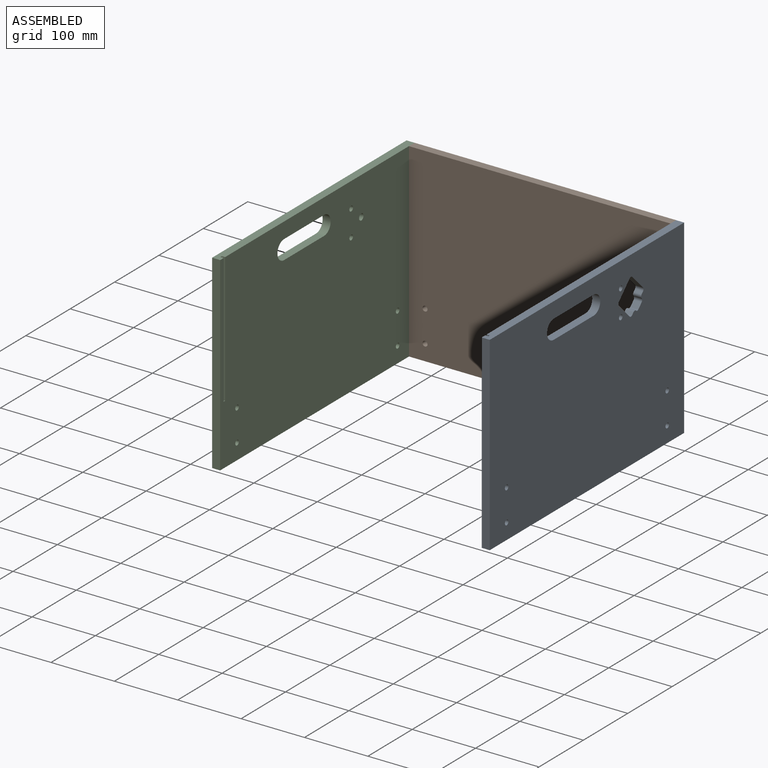
[diagram: assembled view]
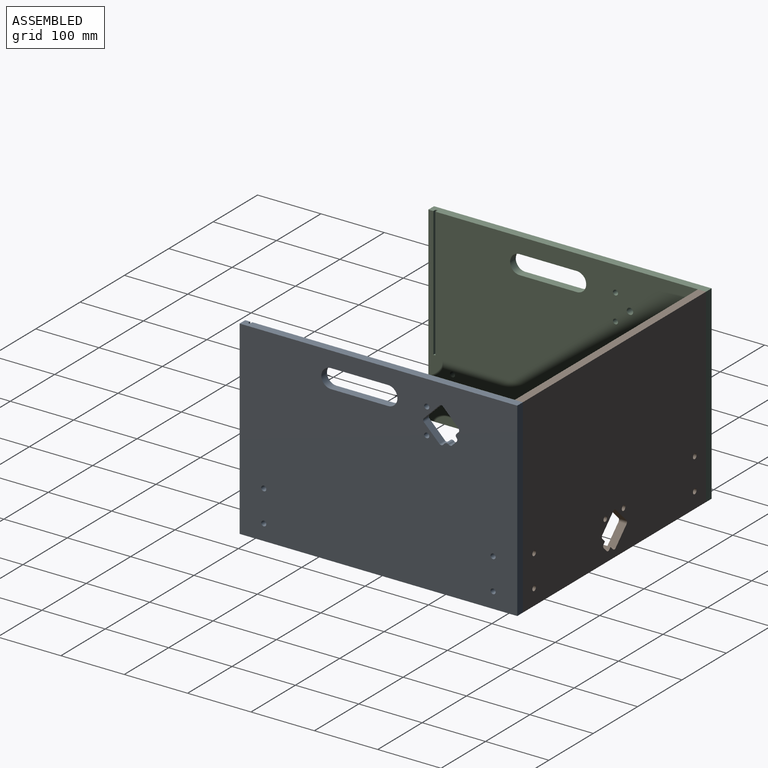
[diagram: assembled view, second angle]
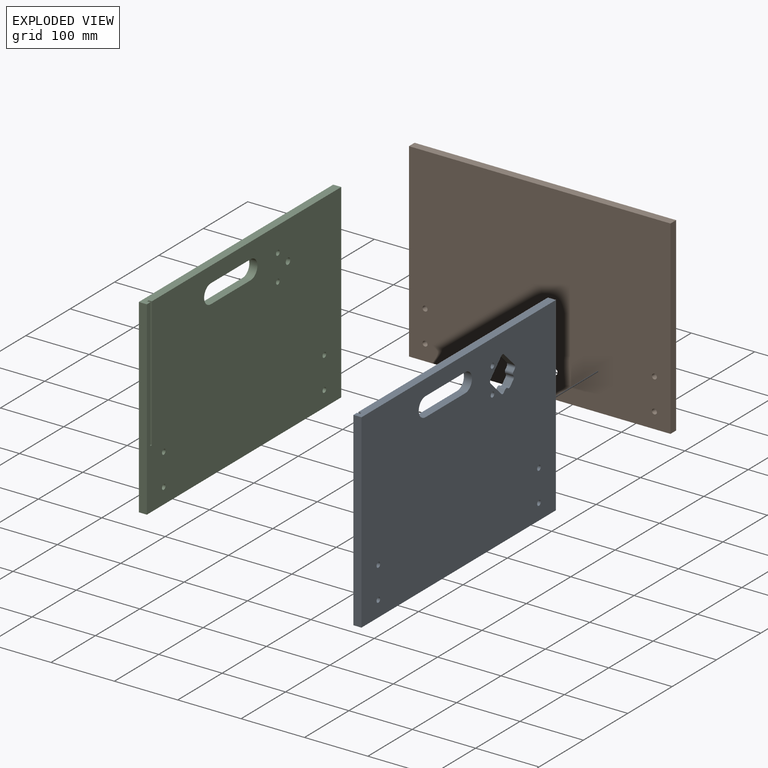
[diagram: exploded view]
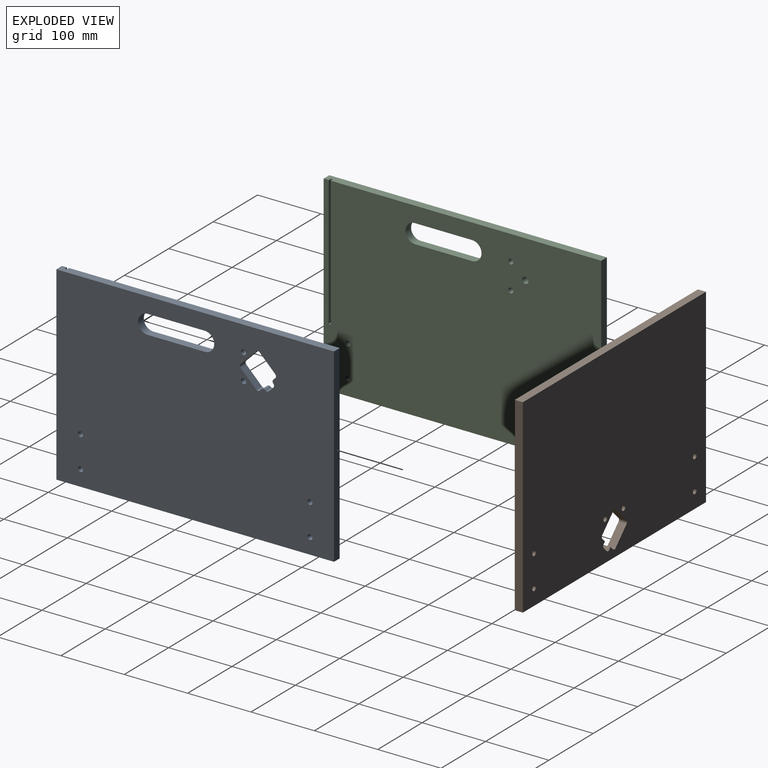
[diagram: exploded view, second angle]
ASSEMBLY  parts=3 mates=4
PART A: 34 faces, bbox 454.1x28.7x316 mm
  f0: plane 205x3.18mm, normal (0,1,0), area 650.9mm2, adj f1,f2,f3,f5
  f1: plane 205x5mm, normal (1,0,0), area 1025mm2, adj f0,f3,f5,f30
  f2: plane 205x5mm, normal (-1,0,0), area 1025mm2, adj f0,f3,f5,f30
  f3: plane 5x3.18mm, normal (0,0,1), area 15.9mm2, adj f0,f1,f2,f30
  f4: plane 300x12.7mm, normal (1,0,0), area 3810mm2, adj f5,f7,f30,f31
  f5: plane 438.1x12.7mm, normal (0,0,1), area 5548mm2, adj f0,f1,f2,f4,f6,f30,f31
  f6: plane 300x12.7mm, normal (-1,0,0), area 3810mm2, adj f5,f7,f30,f31
  f7: plane 438.1x12.7mm, normal (0,0,-1), area 5563.9mm2, adj f4,f6,f30,f31
  f8: plane 90x12.7mm, normal (0,0,1), area 1143mm2, adj f29,f30,f31,f33
  f9: revolved ~12.7x8mm, area 319.2mm2, adj f30,f31
  f10: revolved ~12.7x8mm, area 319.2mm2, adj f30,f31
  f11: revolved ~12.7x8mm, area 319.2mm2, adj f30,f31
  f12: revolved ~12.7x8mm, area 319.2mm2, adj f30,f31
  f13: plane 12.7x3.01mm, normal (-0.71,0,0.71), area 54mm2, adj f14,f26,f30,f31
  f14: revolved ~12.7x5.66mm, area 79.8mm2, adj f13,f15,f30,f31
  f15: revolved ~12.7x5.66mm, area 79.8mm2, adj f14,f16,f30,f31
  f16: plane 12.7x7.07mm, normal (-0.71,0,0.71), area 127mm2, adj f15,f17,f30,f31
  f17: revolved ~12.7x5.66mm, area 79.8mm2, adj f16,f18,f30,f31
  f18: revolved ~12.7x5.66mm, area 79.8mm2, adj f17,f19,f30,f31
  f19: plane 12.7x3.01mm, normal (-0.71,0,0.71), area 54mm2, adj f18,f20,f30,f31
  f20: revolved ~12.7x5.66mm, area 79.8mm2, adj f19,f21,f30,f31
  f21: plane 40.4x40.4mm, normal (0.71,0,0.71), area 438.2mm2, adj f20,f22,f30,f31
  f22: revolved ~12.7x8mm, area 239.4mm2, adj f21,f23,f30,f31
  f23: plane 40.4x40.4mm, normal (0.71,0,-0.71), area 438.2mm2, adj f22,f24,f30,f31
  f24: revolved ~12.7x5.66mm, area 79.8mm2, adj f23,f25,f30,f31
  f25: plane 24.4x24.4mm, normal (-0.71,0,-0.71), area 438.2mm2, adj f24,f26,f30,f31
  f26: revolved ~12.7x5.66mm, area 79.8mm2, adj f13,f25,f30,f31
  f27: revolved ~12.7x8mm, area 638.4mm2, adj f30,f31
  f28: revolved ~12.7x8mm, area 319.2mm2, adj f30,f31
  f29: revolved ~30x15mm, area 598.5mm2, adj f8,f30,f31,f32
  f30: plane 454.1x316mm, normal (0,1,0), area 125136mm2, adj f1,f2,f3,f4,f5,f6,f7,f8
  f31: plane 454.1x316mm, normal (0,-1,0), area 125786.7mm2, adj f4,f5,f6,f7,f8,f9,f10,f11
  f32: plane 90x12.7mm, normal (0,0,-1), area 1143mm2, adj f29,f30,f31,f33
  f33: revolved ~30x15mm, area 598.5mm2, adj f8,f30,f31,f32
PART B: 26 faces, bbox 428.7x28.7x316 mm
  f0: plane 412.7x12.7mm, normal (0,0,-1), area 5241.3mm2, adj f1,f3,f22,f23
  f1: plane 300x12.7mm, normal (1,0,0), area 3810mm2, adj f0,f2,f22,f23
  f2: plane 412.7x12.7mm, normal (0,0,1), area 5241.3mm2, adj f1,f3,f22,f23
  f3: plane 300x12.7mm, normal (-1,0,0), area 3810mm2, adj f0,f2,f22,f23
  f4: revolved ~12.7x8mm, area 638.4mm2, adj f22,f23
  f5: revolved ~12.7x8mm, area 638.4mm2, adj f22,f23
  f6: revolved ~12.7x8mm, area 638.4mm2, adj f22,f23
  f7: revolved ~12.7x8mm, area 638.4mm2, adj f22,f23
  f8: revolved ~12.7x8mm, area 319.2mm2, adj f22,f23
  f9: revolved ~12.7x8mm, area 319.2mm2, adj f22,f23
  f10: revolved ~12.7x5.66mm, area 79.8mm2, adj f11,f20,f22,f23
  f11: plane 12.7x5.83mm, normal (-0.71,0,0.71), area 104.8mm2, adj f10,f12,f22,f23
  f12: plane 12.7x2.83mm, normal (-0.71,0,-0.71), area 50.8mm2, adj f11,f13,f22,f23
  f13: revolved ~12.7x5.66mm, area 79.8mm2, adj f12,f14,f22,f23
  f14: plane 12.7x7.07mm, normal (-0.71,0,0.71), area 127mm2, adj f13,f15,f22,f23
  f15: revolved ~12.7x5.66mm, area 79.8mm2, adj f14,f16,f22,f23
  f16: plane 12.7x2.83mm, normal (0.71,0,0.71), area 50.8mm2, adj f15,f17,f22,f23
  f17: plane 12.7x5.83mm, normal (-0.71,0,0.71), area 104.8mm2, adj f16,f18,f22,f23
  f18: revolved ~12.7x5.66mm, area 79.8mm2, adj f17,f19,f22,f23
  f19: plane 40.4x40.4mm, normal (0.71,0,0.71), area 438.2mm2, adj f18,f22,f23,f25
  f20: plane 24.4x24.4mm, normal (-0.71,0,-0.71), area 438.2mm2, adj f10,f21,f22,f23
  f21: revolved ~12.7x5.66mm, area 79.8mm2, adj f20,f22,f23,f24
  f22: plane 428.7x316mm, normal (0,-1,0), area 121579.1mm2, adj f0,f1,f2,f3,f4,f5,f6,f7
  f23: plane 428.7x316mm, normal (0,1,0), area 121579.1mm2, adj f0,f1,f2,f3,f4,f5,f6,f7
  f24: plane 40.4x40.4mm, normal (0.71,0,-0.71), area 438.2mm2, adj f21,f22,f23,f25
  f25: revolved ~12.7x8mm, area 239.4mm2, adj f19,f22,f23,f24
PART C: 21 faces, bbox 438.1x12.7x300 mm
  f0: plane 205x3.18mm, normal (0,-1,0), area 650.9mm2, adj f1,f5,f6,f7
  f1: plane 205x5mm, normal (1,0,0), area 1025mm2, adj f0,f5,f7,f18
  f2: plane 300x12.7mm, normal (-1,0,0), area 3810mm2, adj f3,f5,f17,f18
  f3: plane 438.1x12.7mm, normal (0,0,-1), area 5563.9mm2, adj f2,f4,f17,f18
  f4: plane 300x12.7mm, normal (1,0,0), area 3810mm2, adj f3,f5,f17,f18
  f5: plane 438.1x12.7mm, normal (0,0,1), area 5548mm2, adj f0,f1,f2,f4,f6,f17,f18
  f6: plane 205x5mm, normal (-1,0,0), area 1025mm2, adj f0,f5,f7,f18
  f7: plane 5x3.18mm, normal (0,0,1), area 15.9mm2, adj f0,f1,f6,f18
  f8: plane 90x12.7mm, normal (0,0,1), area 1143mm2, adj f16,f17,f18,f20
  f9: revolved ~12.7x8mm, area 638.4mm2, adj f17,f18
  f10: revolved ~12.7x8mm, area 638.4mm2, adj f17,f18
  f11: revolved ~12.7x8mm, area 638.4mm2, adj f17,f18
  f12: revolved ~12.7x8mm, area 638.4mm2, adj f17,f18
  f13: revolved ~12.7x10mm, area 798mm2, adj f17,f18
  f14: revolved ~12.7x8mm, area 638.4mm2, adj f17,f18
  f15: revolved ~12.7x8mm, area 319.2mm2, adj f17,f18
  f16: revolved ~30x15mm, area 598.5mm2, adj f8,f17,f18,f19
  f17: plane 438.1x300mm, normal (0,1,0), area 127643.6mm2, adj f2,f3,f4,f5,f8,f9,f10,f11
  f18: plane 438.1x300mm, normal (0,-1,0), area 126992.6mm2, adj f1,f2,f3,f4,f5,f6,f7,f8
  f19: plane 90x12.7mm, normal (0,0,-1), area 1143mm2, adj f16,f17,f18,f20
  f20: revolved ~30x15mm, area 598.5mm2, adj f8,f17,f18,f19
PLACE A rot(axis=(0,0,1),90deg) t=(267.75,207.32,-118.47)mm
PLACE B t=(61.4,426.37,-118.47)mm
PLACE C rot(axis=(0,0,1),90deg) t=(-157.65,207.32,-118.47)mm
MATE fastened B.f23 <-> C.f4  axis (0,1,0) through (-144.95,426.37,-118.47)mm
MATE fastened B.f23 <-> A.f4  axis (0,1,0) through (267.75,426.37,-118.47)mm
MATE planar B.f23 <-> A.f4  axis (0,1,0) through (61.38,426.37,-116.46)mm
MATE planar B.f23 <-> C.f4  axis (0,1,0) through (61.38,426.37,-116.46)mm
